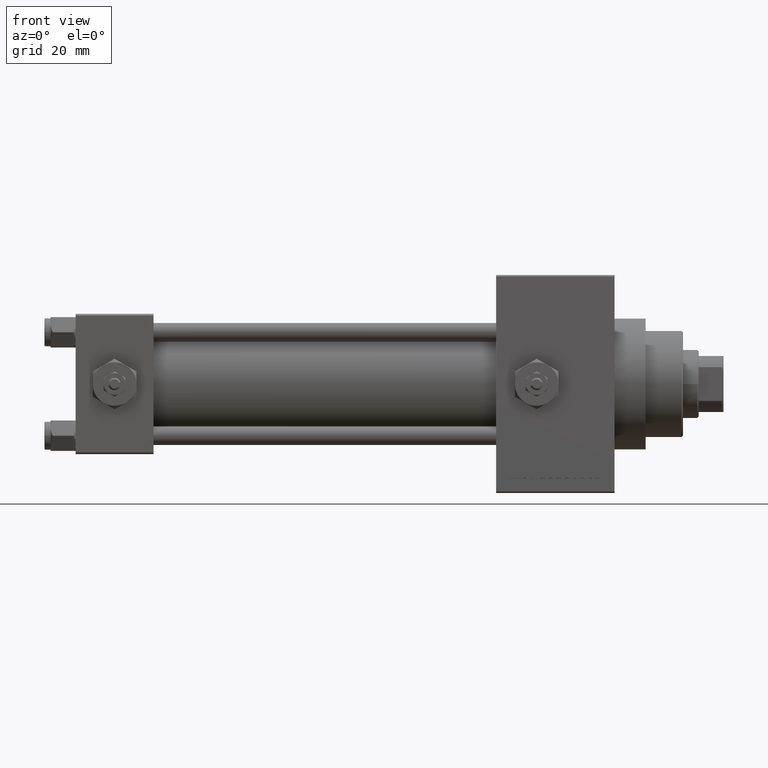
[diagram: clean part render]
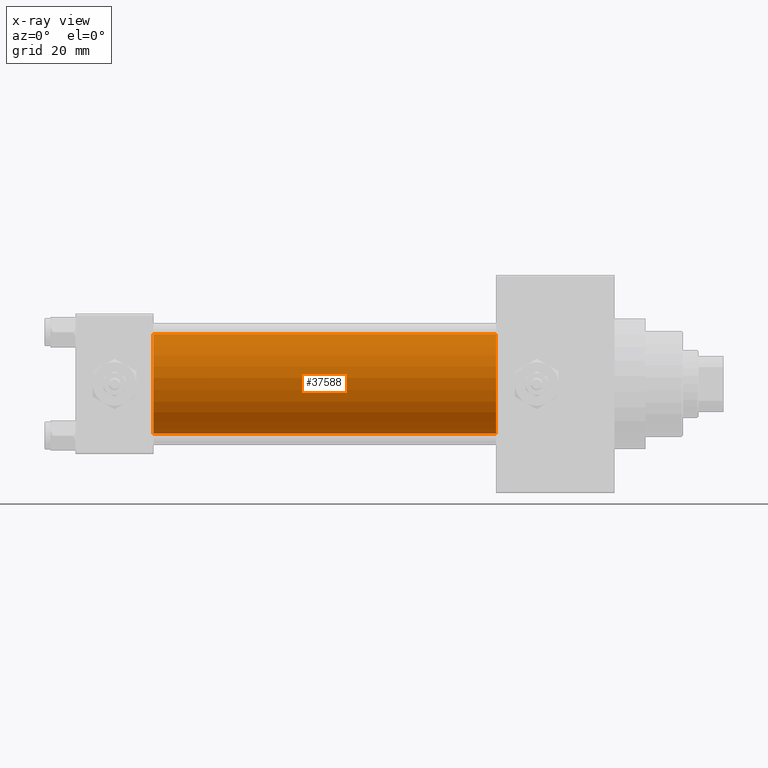
[diagram: x-ray — body ghosted, one internal face saturated and labeled with its STEP entity id]
A machine part, front view, then the same camera in x-ray: the body is ghosted and one INTERNAL B-rep face — a face not visible from any outside direction — is saturated and labeled: STEP entity #37588.
In plain terms, the highlighted cylindrical surface (partial cylindrical patch) has radius 16 mm, axis along (-1, -0, -0).
Its self-contained STEP definition (entity closure, byte-faithful):
#552 = VECTOR ( 'NONE', #17882, 1000.000000000000000 ) ;
#1102 = ORIENTED_EDGE ( 'NONE', *, *, #14439, .T. ) ;
#2764 = CARTESIAN_POINT ( 'NONE',  ( 135.0000000000000000, -6.426503353294456087E-16, -16.00000000000000000 ) ) ;
#2836 = CARTESIAN_POINT ( 'NONE',  ( 25.00000000000000000, -6.426503353294456087E-16, -16.00000000000000000 ) ) ;
#2950 = CARTESIAN_POINT ( 'NONE',  ( 25.00000000000000000, -2.602085213965210642E-15, 0.000000000000000000 ) ) ;
#3091 = DIRECTION ( 'NONE',  ( 1.000000000000000000, 0.000000000000000000, 0.000000000000000000 ) ) ;
#4035 = CARTESIAN_POINT ( 'NONE',  ( 135.0000000000000000, -2.602085213965210642E-15, 0.000000000000000000 ) ) ;
#4557 = AXIS2_PLACEMENT_3D ( 'NONE', #4035, #30833, #27351 ) ;
#9002 = CARTESIAN_POINT ( 'NONE',  ( 25.00000000000000000, -2.602085213965210642E-15, 16.00000000000000000 ) ) ;
#9920 = CIRCLE ( 'NONE', #26535, 16.00000000000000000 ) ;
#10227 = VECTOR ( 'NONE', #13927, 1000.000000000000000 ) ;
#12051 = DIRECTION ( 'NONE',  ( 1.000000000000000000, 0.000000000000000000, 0.000000000000000000 ) ) ;
#12490 = AXIS2_PLACEMENT_3D ( 'NONE', #2950, #12051, #26691 ) ;
#13927 = DIRECTION ( 'NONE',  ( -1.000000000000000000, -0.000000000000000000, -0.000000000000000000 ) ) ;
#14439 = EDGE_CURVE ( 'NONE', #18966, #46700, #9920, .T. ) ;
#14492 = DIRECTION ( 'NONE',  ( 0.000000000000000000, 0.000000000000000000, -1.000000000000000000 ) ) ;
#15696 = CARTESIAN_POINT ( 'NONE',  ( 135.0000000000000000, -2.602085213965210642E-15, 16.00000000000000000 ) ) ;
#17196 = ORIENTED_EDGE ( 'NONE', *, *, #19526, .F. ) ;
#17704 = ORIENTED_EDGE ( 'NONE', *, *, #41651, .F. ) ;
#17882 = DIRECTION ( 'NONE',  ( -1.000000000000000000, -0.000000000000000000, -0.000000000000000000 ) ) ;
#18498 = VERTEX_POINT ( 'NONE', #2836 ) ;
#18966 = VERTEX_POINT ( 'NONE', #15696 ) ;
#19238 = CARTESIAN_POINT ( 'NONE',  ( 135.0000000000000000, -6.426503353294456087E-16, -16.00000000000000000 ) ) ;
#19526 = EDGE_CURVE ( 'NONE', #38622, #18498, #44209, .T. ) ;
#21352 = LINE ( 'NONE', #2764, #552 ) ;
#24357 = LINE ( 'NONE', #47970, #10227 ) ;
#26535 = AXIS2_PLACEMENT_3D ( 'NONE', #37111, #3091, #14492 ) ;
#26615 = CYLINDRICAL_SURFACE ( 'NONE', #4557, 16.00000000000000000 ) ;
#26691 = DIRECTION ( 'NONE',  ( 0.000000000000000000, 0.000000000000000000, -1.000000000000000000 ) ) ;
#27351 = DIRECTION ( 'NONE',  ( 0.000000000000000000, 0.000000000000000000, 1.000000000000000000 ) ) ;
#30833 = DIRECTION ( 'NONE',  ( -1.000000000000000000, -0.000000000000000000, -0.000000000000000000 ) ) ;
#33575 = EDGE_CURVE ( 'NONE', #46700, #18498, #21352, .T. ) ;
#37111 = CARTESIAN_POINT ( 'NONE',  ( 135.0000000000000000, -2.602085213965210642E-15, 0.000000000000000000 ) ) ;
#37588 = ADVANCED_FACE ( 'NONE', ( #38547 ), #26615, .F. ) ;
#38547 = FACE_OUTER_BOUND ( 'NONE', #48957, .T. ) ;
#38622 = VERTEX_POINT ( 'NONE', #9002 ) ;
#41651 = EDGE_CURVE ( 'NONE', #18966, #38622, #24357, .T. ) ;
#44209 = CIRCLE ( 'NONE', #12490, 16.00000000000000000 ) ;
#46198 = ORIENTED_EDGE ( 'NONE', *, *, #33575, .T. ) ;
#46700 = VERTEX_POINT ( 'NONE', #19238 ) ;
#47970 = CARTESIAN_POINT ( 'NONE',  ( 135.0000000000000000, -2.602085213965210642E-15, 16.00000000000000000 ) ) ;
#48957 = EDGE_LOOP ( 'NONE', ( #1102, #46198, #17196, #17704 ) ) ;